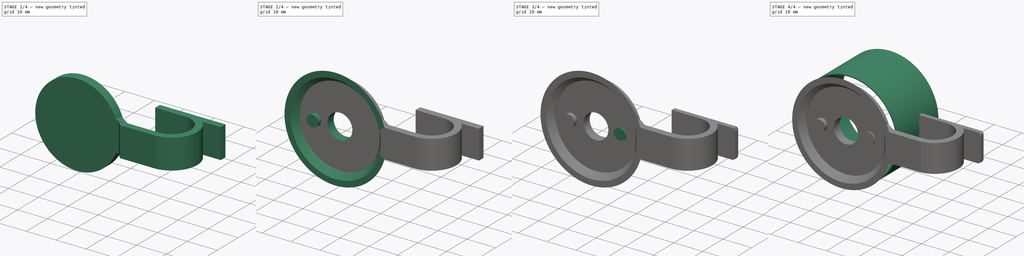
[diagram: build sequence overview — one tinted view per stage of 4, left to right]
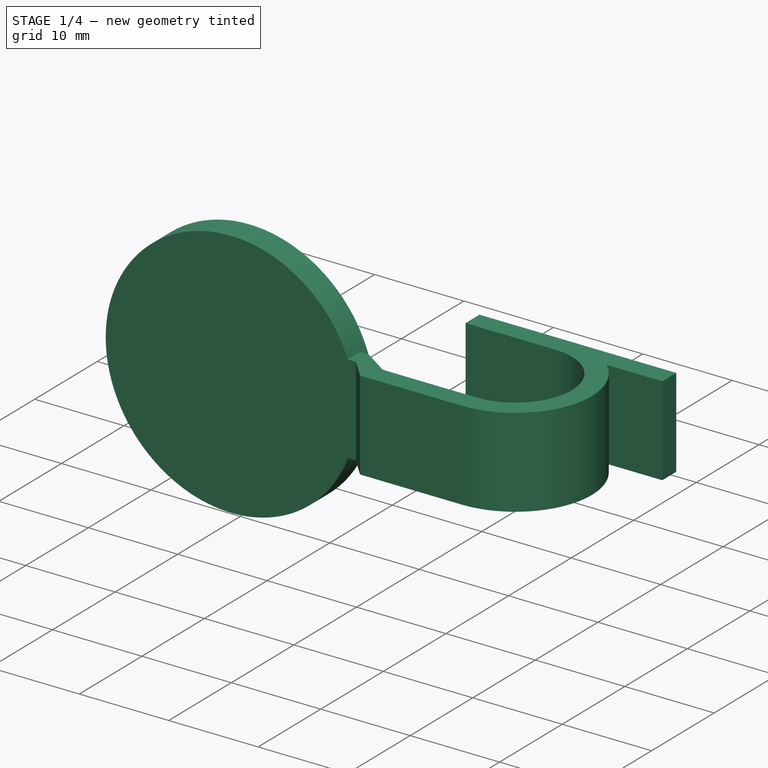
[diagram: stage 1 of 4 — iso view after this stage's code; geometry added in this stage tinted green]
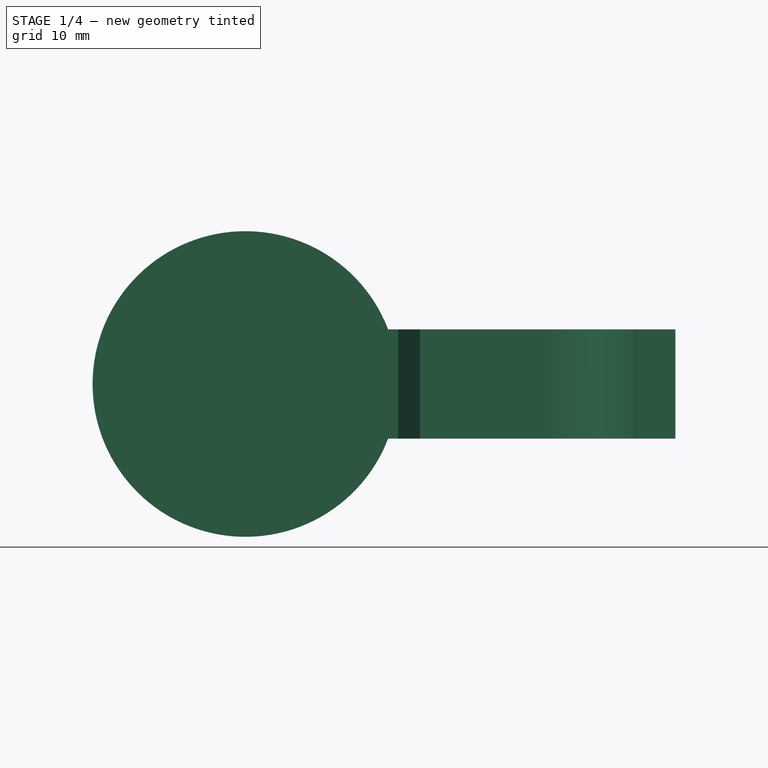
[diagram: stage 1 of 4 — front view after this stage's code; geometry added in this stage tinted green]
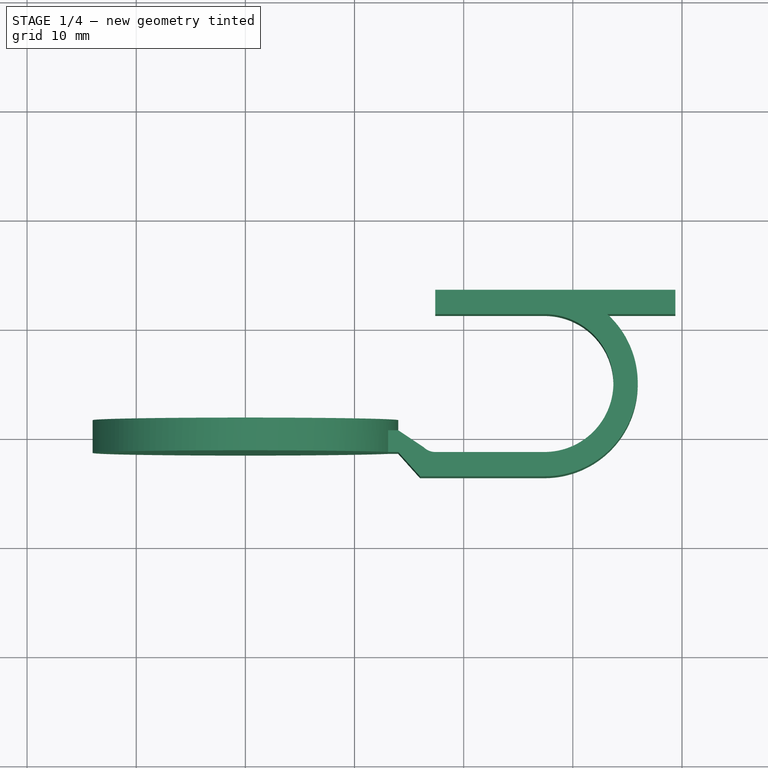
[diagram: stage 1 of 4 — top view after this stage's code; geometry added in this stage tinted green]
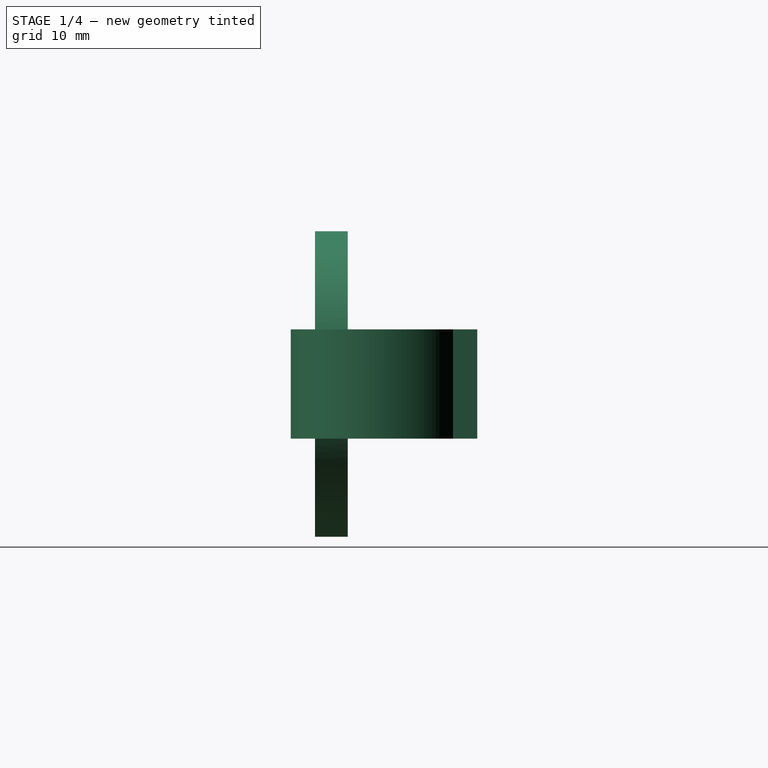
[diagram: stage 1 of 4 — right view after this stage's code; geometry added in this stage tinted green]
FCSTD DOCUMENT  (FreeCAD 1.0R39319 (Git))
Label: standard-bike-bell-lever
License: All rights reserved
LicenseURL: https://en.wikipedia.org/wiki/All_rights_reserved
objects: Sketcher::SketchObject×6, PartDesign::Pad×5, PartDesign::Hole×2, PartDesign::Body×2, PartDesign::Fillet×2, PartDesign::Revolution×1
note: 44 computed .brp shape members not serialized (recipe doc carries the construction recipe); baked Part::Feature solids carry a one-line shape summary decoded from their .brp

FEATURE [PartDesign::Body] Body001  label="Bell"
  AllowCompound = false
  Group = -> [Sketch003,Pad002,Hole001]
  Origin = -> Origin001
  Tip = -> Hole001
FEATURE [Sketcher::SketchObject] Sketch006
  ArcFitTolerance = 1e-06
  FullyConstrained = false
  MakeInternals = false
  MapMode = 5
  Placement = pos=(0,-1.5,3e-16) rot=(1,0,0;1.5708rad)
  sketch-geometry (1):
    g0: Circle CenterX=-8.5 CenterY=0 CenterZ=0 NormalX=0 NormalY=0 NormalZ=1 AngleXU=0 Radius=2
FEATURE [PartDesign::Pad] Pad003
  Direction = (0,0,1)
  Length = 10
  Length2 = 10
  Midplane = true
  Profile = -> Sketch001
  ReferenceAxis = -> Sketch001 [N_Axis]
  Refine = true
  Suppressed = false
  Type = 0
FEATURE [PartDesign::Pad] Pad
  BaseFeature = -> Pad003
  Direction = (0,-1,2e-16)
  Length = 3
  Length2 = 10
  Midplane = true
  Profile = -> Sketch
  ReferenceAxis = -> Sketch [N_Axis]
  Refine = true
  Suppressed = false
  Type = 0
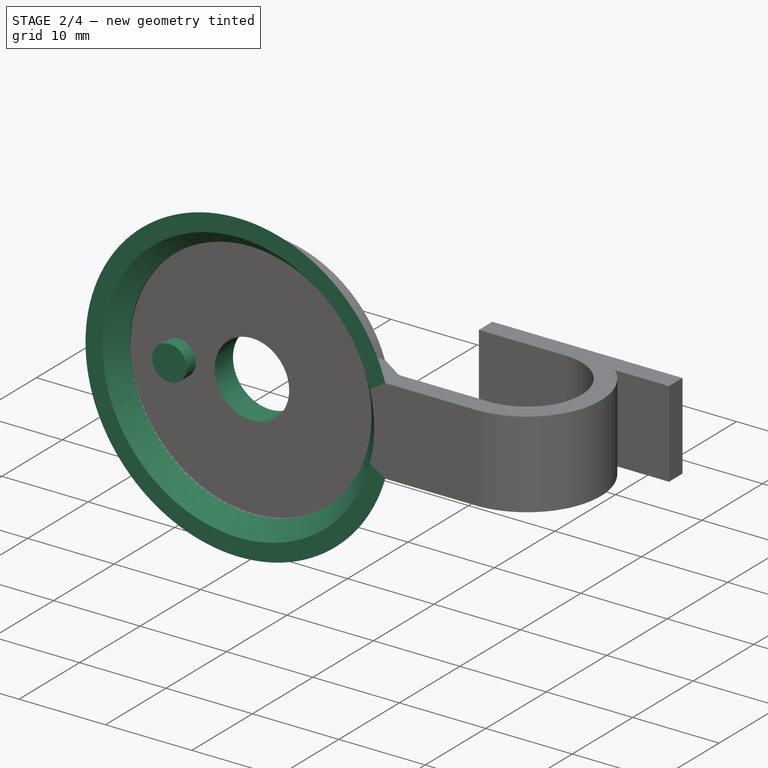
[diagram: stage 2 of 4 — iso view after this stage's code; geometry added in this stage tinted green]
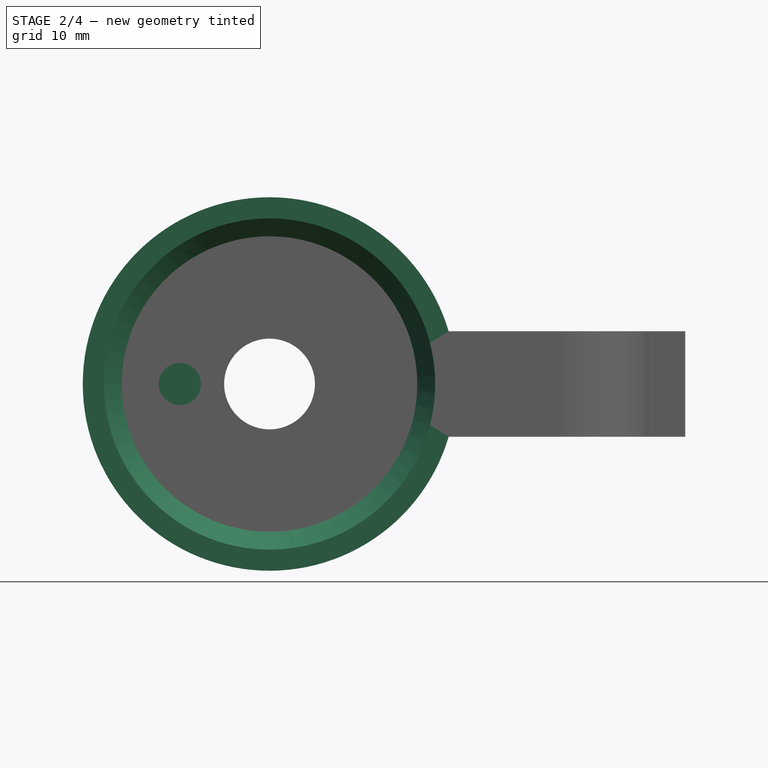
[diagram: stage 2 of 4 — front view after this stage's code; geometry added in this stage tinted green]
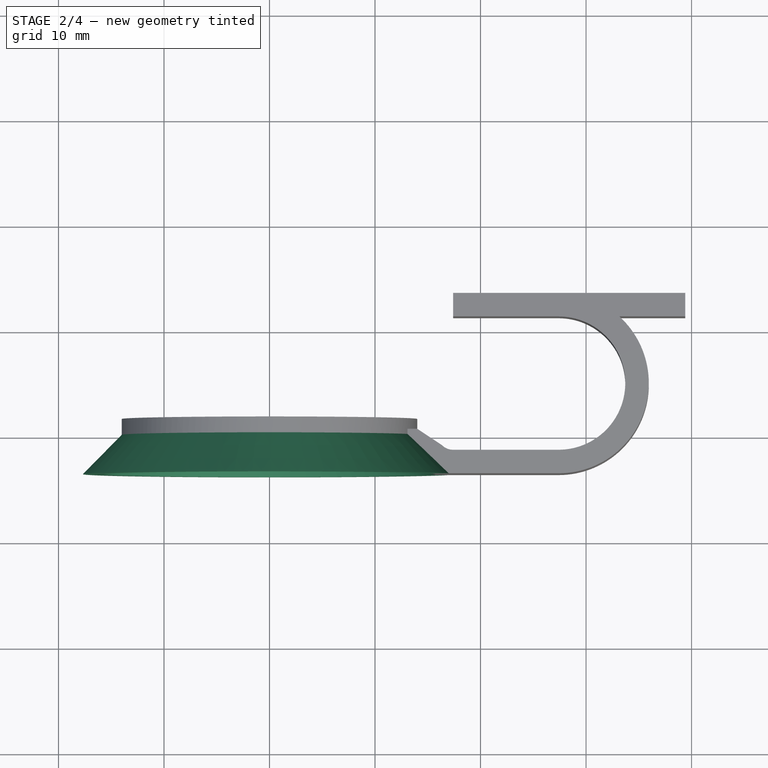
[diagram: stage 2 of 4 — top view after this stage's code; geometry added in this stage tinted green]
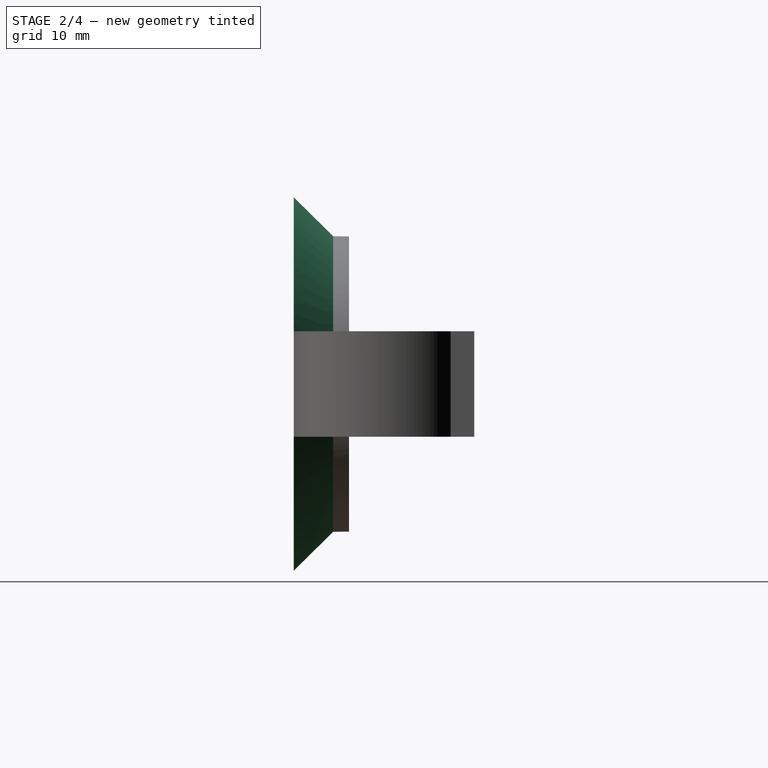
[diagram: stage 2 of 4 — right view after this stage's code; geometry added in this stage tinted green]
FEATURE [PartDesign::Pad] Pad004
  BaseFeature = -> Pad
  Direction = (0,-1,2e-16)
  Length = 1.5
  Length2 = 10
  Profile = -> Sketch006
  ReferenceAxis = -> Sketch006 [N_Axis]
  Refine = true
  Suppressed = false
  Type = 0
FEATURE [PartDesign::Hole] Hole
  BaseFeature = -> Pad004
  CustomThreadClearance = 0
  Depth = 25
  DepthType = 0
  Diameter = 8.6
  DrillForDepth = false
  DrillPoint = 1
  DrillPointAngle = 118
  HoleCutCountersinkAngle = 90
  HoleCutCustomValues = false
  HoleCutDepth = 0
  HoleCutDiameter = 6.1
  HoleCutType = 0
  ModelThread = false
  Profile = -> Pad004 [Face20]
  Refine = true
  Suppressed = false
  Tapered = false
  TaperedAngle = 90
  ThreadClass = 0
  ThreadDepth = 25
  ThreadDepthType = 0
  ThreadDirection = 0
  ThreadFit = 0
  ThreadSize = 0
  ThreadType = 0
  Threaded = false
  UseCustomThreadClearance = false
FEATURE [Sketcher::SketchObject] Sketch007
  ArcFitTolerance = 1e-06
  AttachmentSupport = -> [XY_Plane]
  ExternalGeometry = -> [Hole]
  FullyConstrained = false
  MakeInternals = false
  MapMode = 5
  sketch-geometry (5):
    g0: LineSegment StartX=-14 StartY=-1.75 StartZ=0 EndX=-15.6983 EndY=-3.73 EndZ=0
    g1: LineSegment StartX=-15.6983 StartY=-3.73 StartZ=0 EndX=-17.6983 EndY=-3.73 EndZ=0
    g2: LineSegment StartX=-14 StartY=-1.75 StartZ=0 EndX=-14 EndY=0 EndZ=0
    g3: LineSegment StartX=-14 StartY=0 StartZ=0 EndX=-17.6983 EndY=-3.73 EndZ=0
    g4: LineSegment [constr] StartX=16 StartY=-3.73 StartZ=0 EndX=-24 EndY=-3.73 EndZ=0
  constraints (13):
    c: Coincident(g0,g-3)
    c: Distance(g1) = 2
    c: Horizontal(g1)
    c: Coincident(g1,g0)
    c: Coincident(g2,g0)
    c: PointOnObject(g2,g-1)
    c: Vertical(g2)
    c: Coincident(g3,g2)
    c: Coincident(g3,g1)
    c: Distance(g4) = 40
    c: Coincident(g4,g-4)
    c: Horizontal(g4)
    c: PointOnObject(g0,g4)
FEATURE [PartDesign::Revolution] Revolution
  Angle = 360
  Angle2 = 60
  Axis = (0,1,0)
  Base = (0,0,0)
  BaseFeature = -> Hole
  Profile = -> Sketch007
  ReferenceAxis = -> Sketch007 [V_Axis]
  Refine = true
  Suppressed = false
  Type = 0
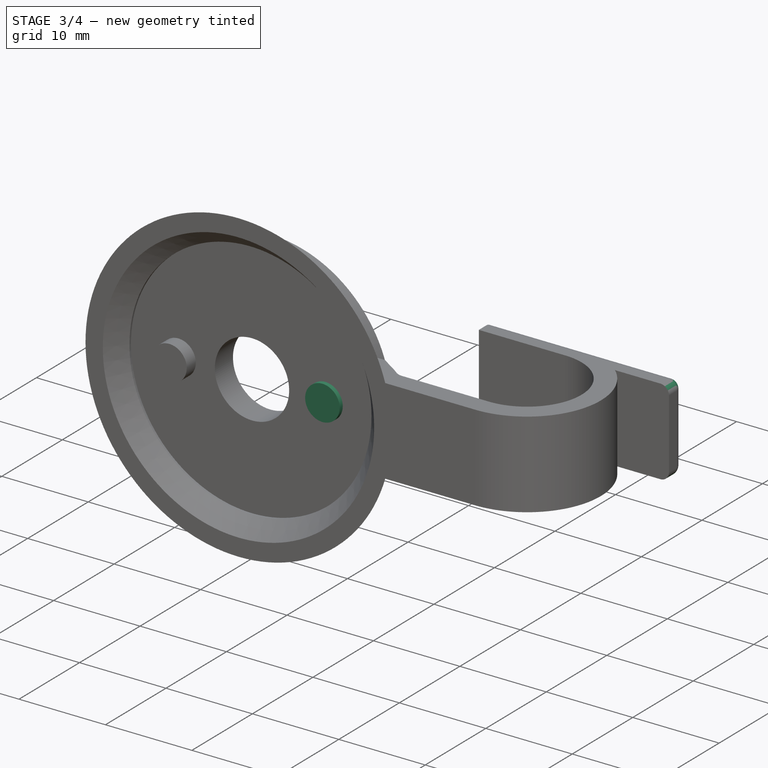
[diagram: stage 3 of 4 — iso view after this stage's code; geometry added in this stage tinted green]
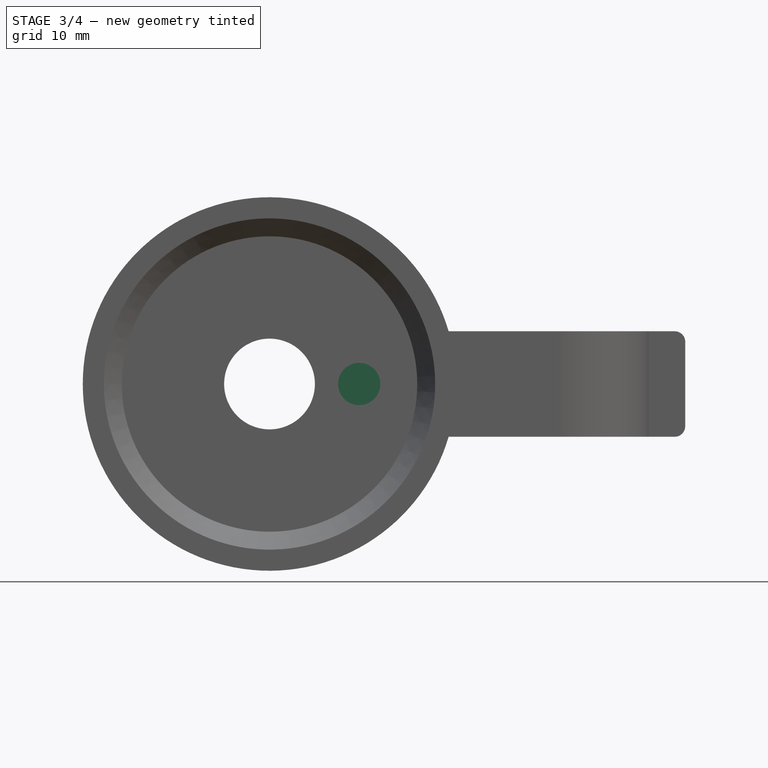
[diagram: stage 3 of 4 — front view after this stage's code; geometry added in this stage tinted green]
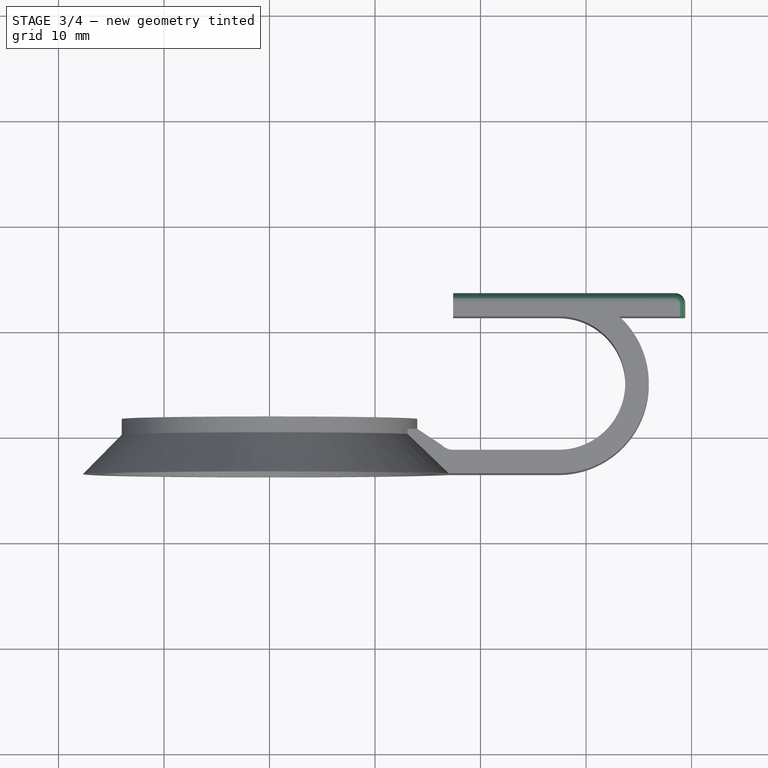
[diagram: stage 3 of 4 — top view after this stage's code; geometry added in this stage tinted green]
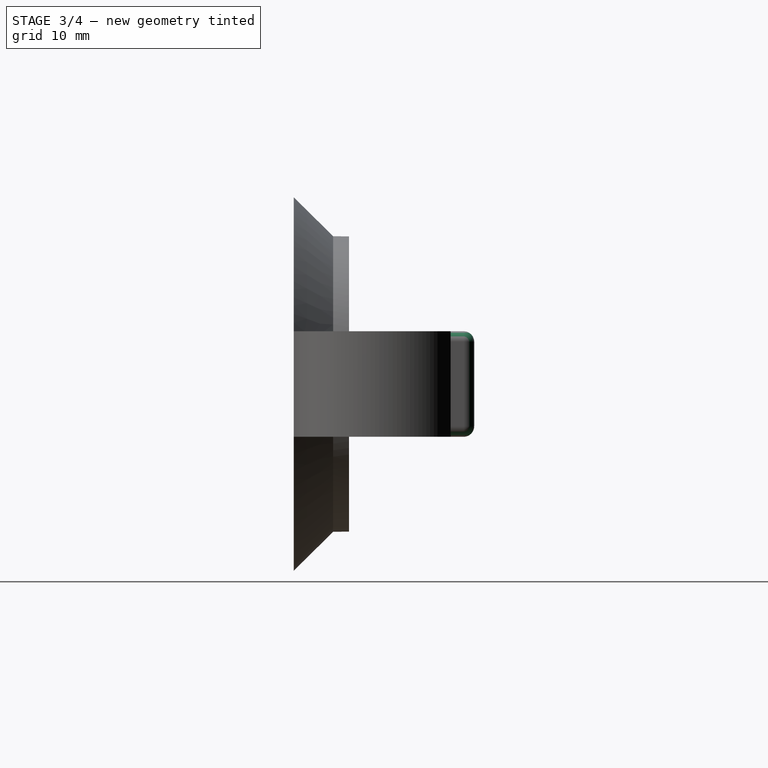
[diagram: stage 3 of 4 — right view after this stage's code; geometry added in this stage tinted green]
FEATURE [PartDesign::Fillet] Fillet
  Base = -> Revolution [Edge14,Edge32]
  BaseFeature = -> Revolution
  Radius = 1
  Refine = true
  SupportTransform = false
  Suppressed = false
  UseAllEdges = false
FEATURE [PartDesign::Fillet] Fillet001
  Base = -> Fillet [Edge17]
  BaseFeature = -> Fillet
  Radius = 1
  Refine = true
  SupportTransform = false
  Suppressed = false
  UseAllEdges = false
FEATURE [Sketcher::SketchObject] Sketch009
  ArcFitTolerance = 1e-06
  AttachmentSupport = -> [Fillet001]
  FullyConstrained = true
  MakeInternals = false
  MapMode = 5
  Placement = pos=(0,-1.5,0) rot=(1,0,0;1.5708rad)
  sketch-geometry (1):
    g0: Circle CenterX=8.5 CenterY=0 CenterZ=0 NormalX=0 NormalY=0 NormalZ=1 AngleXU=0 Radius=2
  constraints (2):
    c: Coincident(g0,g-3)
    c: Equal(g0,g-3)
FEATURE [PartDesign::Pad] Pad005
  BaseFeature = -> Fillet001
  Direction = (0,-1,2e-16)
  Length = 0.5
  Length2 = 10
  Profile = -> Sketch009
  ReferenceAxis = -> Sketch009 [N_Axis]
  Refine = true
  Suppressed = false
  Type = 0
FEATURE [PartDesign::Body] Body
  AllowCompound = false
  Group = -> [Sketch,Sketch001,Sketch006,Pad003,Pad,Pad004,Hole,Sketch007,Revolution,Fillet,Fillet001,Sketch009,Pad005]
  Origin = -> Origin
  Tip = -> Pad005
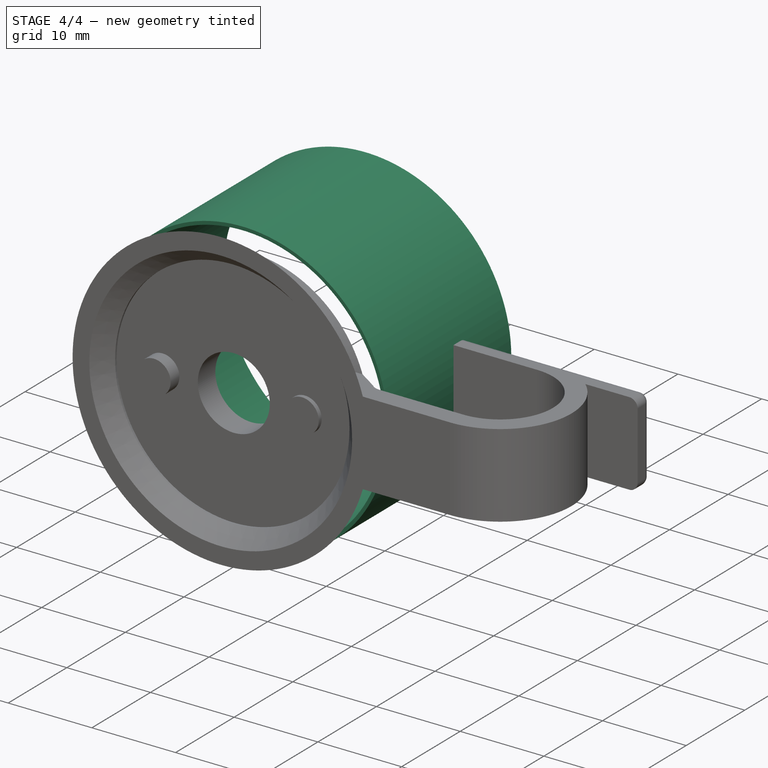
[diagram: stage 4 of 4 — iso view after this stage's code; geometry added in this stage tinted green]
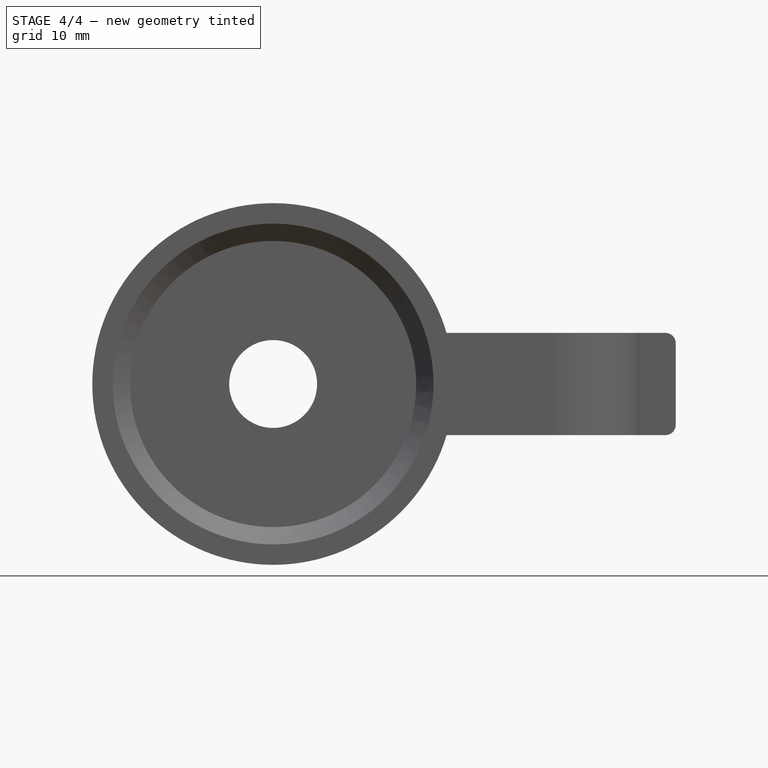
[diagram: stage 4 of 4 — front view after this stage's code; geometry added in this stage tinted green]
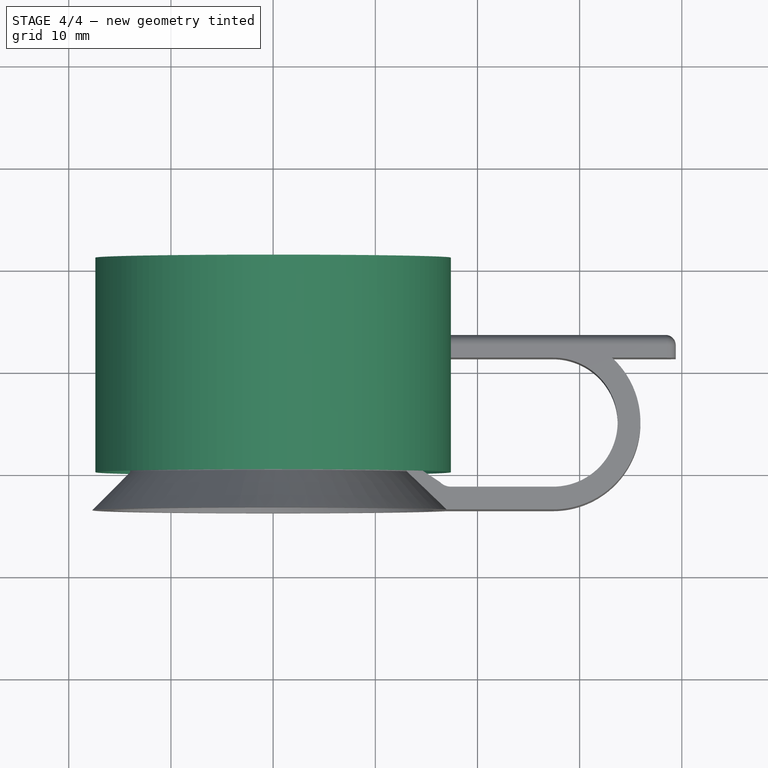
[diagram: stage 4 of 4 — top view after this stage's code; geometry added in this stage tinted green]
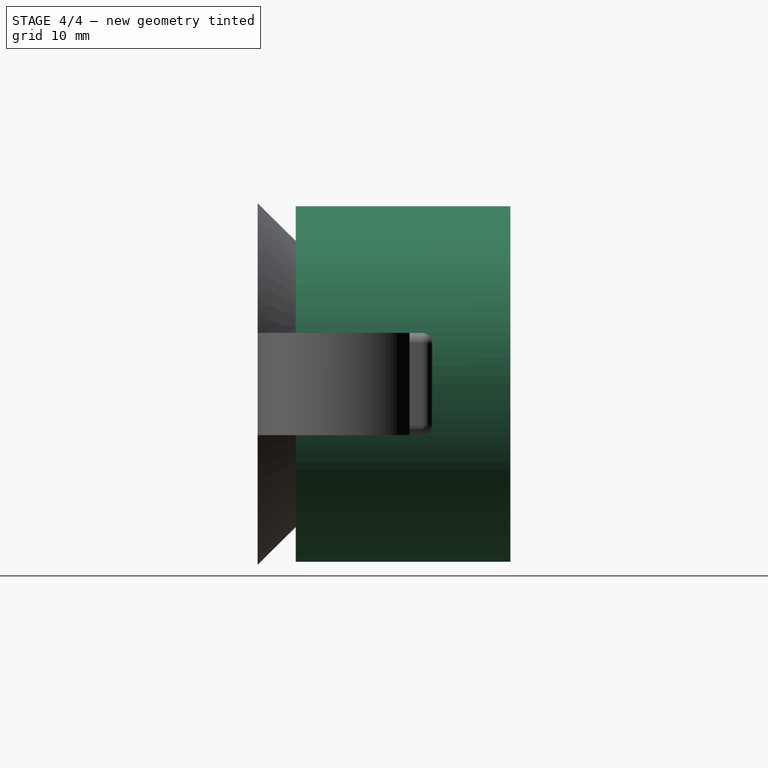
[diagram: stage 4 of 4 — right view after this stage's code; geometry added in this stage tinted green]
FEATURE [Sketcher::SketchObject] Sketch
  ArcFitTolerance = 1e-06
  AttachmentSupport = -> [XZ_Plane]
  FullyConstrained = true
  MakeInternals = false
  MapMode = 5
  Placement = pos=(0,0,0) rot=(1,0,0;1.5708rad)
  sketch-geometry (2):
    g0: Circle [constr] CenterX=0 CenterY=0 CenterZ=0 NormalX=0 NormalY=0 NormalZ=1 AngleXU=0 Radius=17.1
    g1: Circle CenterX=0 CenterY=0 CenterZ=0 NormalX=0 NormalY=0 NormalZ=1 AngleXU=0 Radius=14
  constraints (4):
    c: Diameter(g0) = 34.2
    c: Coincident(g0,g-1)
    c: Diameter(g1) = 28
    c: Coincident(g0,g1)
FEATURE [Sketcher::SketchObject] Sketch001
  ArcFitTolerance = 1e-06
  AttachmentSupport = -> [XY_Plane]
  FullyConstrained = false
  MakeInternals = false
  MapMode = 5
  expr: Constraints[9] = 34.8 / 2
  sketch-geometry (21):
    g0: GeomPoint [constr] X=17.2997 Y=0 Z=0
    g1: LineSegment StartX=17.4 StartY=11.1359 StartZ=0 EndX=17.4 EndY=13.3659 EndZ=0
    g2: LineSegment StartX=20.4186 StartY=13.3659 StartZ=0 EndX=27.4 EndY=13.3659 EndZ=0
    g3: LineSegment StartX=17.4 StartY=11.1359 StartZ=0 EndX=27.4 EndY=11.1359 EndZ=0
    g4: LineSegment StartX=20.4186 StartY=13.3659 StartZ=0 EndX=17.4 EndY=13.3659 EndZ=0
    g5: LineSegment [constr] StartX=17.4 StartY=-1.0362e-12 StartZ=0 EndX=17.4 EndY=21 EndZ=0
    g6: LineSegment [constr] StartX=17.4 StartY=13.3659 StartZ=0 EndX=17.4 EndY=13.3659 EndZ=0
    g7: ArcOfCircle CenterX=17.4 CenterY=-1.0362e-12 CenterZ=0 NormalX=0 NormalY=0 NormalZ=1 AngleXU=0 Radius=1.5 StartAngle=3.92699 EndAngle=4.71239
    g8: LineSegment StartX=17.4 StartY=-1.5 StartZ=0 EndX=27.4 EndY=-1.5 EndZ=0
    g9: LineSegment StartX=16 StartY=-3.73 StartZ=0 EndX=27.4 EndY=-3.73 EndZ=0
    g10: LineSegment [constr] StartX=27.4 StartY=15.7753 StartZ=0 EndX=27.4 EndY=-9.22465 EndZ=0
    g11: ArcOfCircle CenterX=27.4 CenterY=4.81794 CenterZ=0 NormalX=0 NormalY=0 NormalZ=1 AngleXU=0 Radius=6.31794 StartAngle=4.71239 EndAngle=7.85398
    g12: ArcOfCircle CenterX=27.4 CenterY=4.81794 CenterZ=0 NormalX=0 NormalY=0 NormalZ=1 AngleXU=0 Radius=8.54794 StartAngle=4.71239 EndAngle=7.11495
    g13: LineSegment StartX=33.1577 StartY=11.1359 StartZ=0 EndX=39.4 EndY=11.1359 EndZ=0
    g14: LineSegment StartX=39.4 StartY=11.1359 StartZ=0 EndX=39.4 EndY=13.3659 EndZ=0
    g15: LineSegment StartX=39.4 StartY=13.3659 StartZ=0 EndX=27.4 EndY=13.3659 EndZ=0
    g16: LineSegment StartX=14 StartY=0.490656 StartZ=0 EndX=9 EndY=0.490656 EndZ=0
    g17: LineSegment StartX=9 StartY=0.490656 StartZ=0 EndX=9 EndY=-1.5 EndZ=0
    g18: LineSegment StartX=9 StartY=-1.5 StartZ=0 EndX=14 EndY=-1.5 EndZ=0
    g19: LineSegment StartX=16 StartY=-3.73 StartZ=0 EndX=14 EndY=-1.5 EndZ=0
    g20: LineSegment StartX=16.3393 StartY=-1.06066 StartZ=0 EndX=14 EndY=0.490656 EndZ=0
  constraints (51):
    c: PointOnObject(g0,g-1)
    c: Vertical(g1)
    c: Horizontal(g2)
    c: Coincident(g3,g1)
    c: Parallel(g2,g3)
    c: Coincident(g4,g2)
    c: Coincident(g4,g1)
    c: PointOnObject(g5,g-1)
    c: Vertical(g5)
    c: DistanceX(g-1,g5) = 17.4
    c: PointOnObject(g6,g5)
    c: Coincident(g6,g1)
    c: Horizontal(g6)
    c: Horizontal(g4)
    c: DistanceX(g6,g1) = 0
    c: DistanceY(g1,g1) = 2.23
    c: Radius(g7) = 1.5
    c: Coincident(g7,g5)
    c: Distance(g8) = 10
    c: Tangent(g8,g7) = -1.5708
    c: Horizontal(g8)
    c: Horizontal(g9)
    c: Distance(g10) = 25
    c: Vertical(g10)
    c: PointOnObject(g8,g10)
    c: PointOnObject(g9,g10)
    c: PointOnObject(g3,g10)
    c: Coincident(g11,g8)
    c: Coincident(g11,g3)
    c: PointOnObject(g11,g10)
    c: PointOnObject(g2,g10)
    c: Coincident(g12,g9)
    c: Coincident(g12,g11)
    c: Coincident(g13,g14)
    c: Coincident(g14,g15)
    c: Vertical(g14)
    c: Horizontal(g13)
    c: Horizontal(g15)
    c: Distance(g15,g14) = 12
    c: Coincident(g13,g12)
    c: Coincident(g2,g15)
    c: Coincident(g16,g17)
    c: Coincident(g17,g18)
    c: Vertical(g17)
    c: Horizontal(g16)
    c: Horizontal(g18)
    c: DistanceX(g16,g16) = 5
    c: Coincident(g19,g9)
    c: Coincident(g19,g18)
    c: Coincident(g20,g7)
    c: Coincident(g20,g16)
FEATURE [Sketcher::SketchObject] Sketch003
  ArcFitTolerance = 1e-06
  AttachmentSupport = -> [XZ_Plane001]
  FullyConstrained = true
  MakeInternals = false
  MapMode = 5
  Placement = pos=(0,0,0) rot=(1,0,0;1.5708rad)
  sketch-geometry (1):
    g0: Circle CenterX=0 CenterY=0 CenterZ=0 NormalX=0 NormalY=0 NormalZ=1 AngleXU=0 Radius=17.4
  constraints (2):
    c: Diameter(g0) = 34.8
    c: Coincident(g0,g-1)
FEATURE [PartDesign::Pad] Pad002
  Direction = (0,-1,2e-16)
  Length = 21
  Length2 = 10
  Placement = pos=(0,0,0) rot=(1,0,0;1.5708rad)
  Profile = -> Sketch003
  ReferenceAxis = -> Sketch003 [N_Axis]
  Refine = true
  Reversed = true
  Suppressed = false
  Type = 0
FEATURE [PartDesign::Hole] Hole001
  BaseFeature = -> Pad002
  CustomThreadClearance = 0
  Depth = 25
  DepthType = 0
  Diameter = 34
  DrillForDepth = false
  DrillPoint = 1
  DrillPointAngle = 118
  HoleCutCountersinkAngle = 90
  HoleCutCustomValues = false
  HoleCutDepth = 0
  HoleCutDiameter = 0
  HoleCutType = 0
  ModelThread = false
  Placement = pos=(0,0,0) rot=(1,0,0;1.5708rad)
  Profile = -> Pad002 [Face3]
  Refine = true
  Suppressed = false
  Tapered = false
  TaperedAngle = 90
  ThreadClass = 0
  ThreadDepth = 25
  ThreadDepthType = 0
  ThreadDirection = 0
  ThreadFit = 0
  ThreadSize = 0
  ThreadType = 0
  Threaded = false
  UseCustomThreadClearance = false
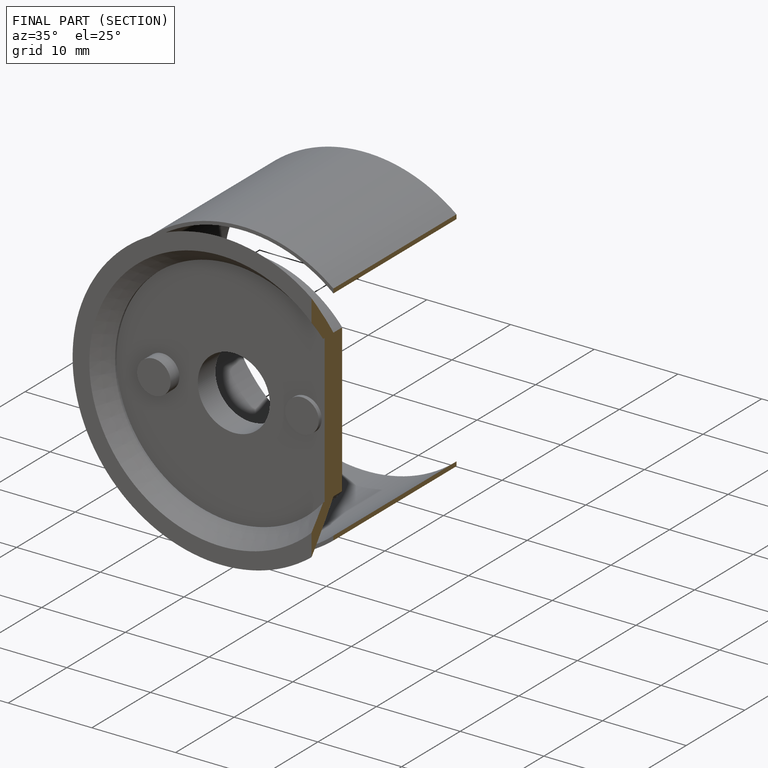
[diagram: finished part — half-section view (interior)]
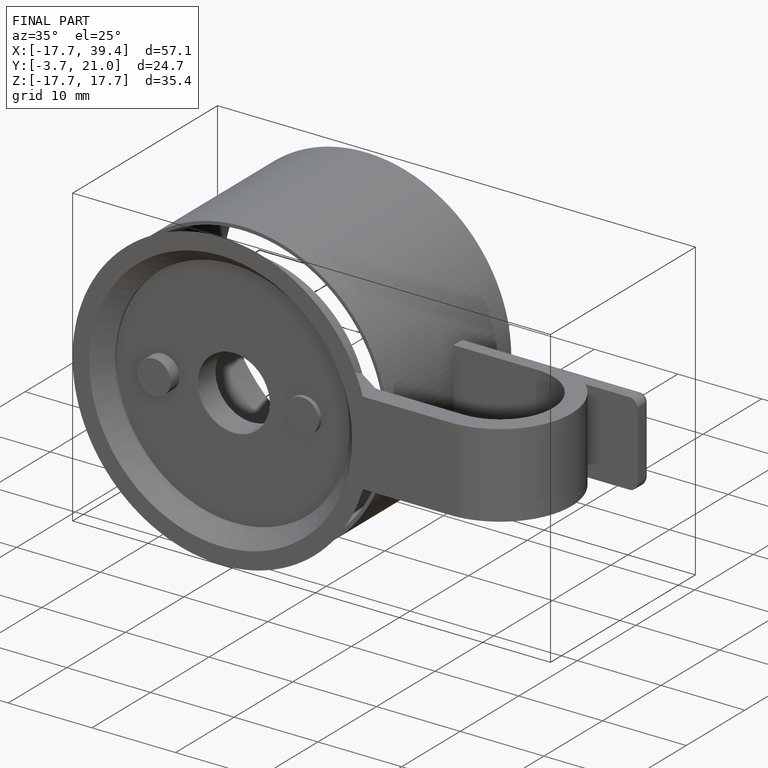
[diagram: finished part — iso view with bounding-box wireframe]
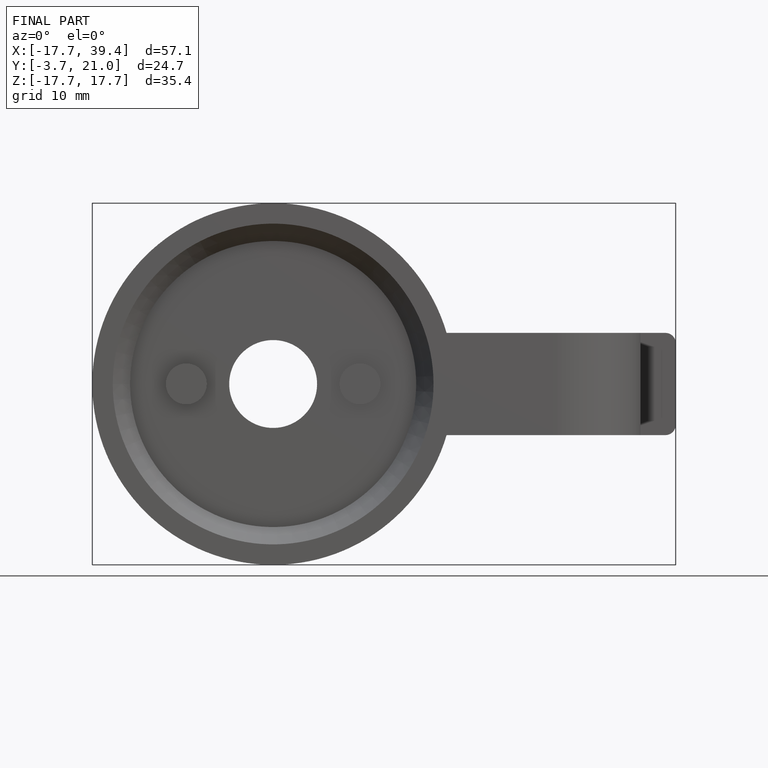
[diagram: finished part — front view with bounding-box wireframe]
